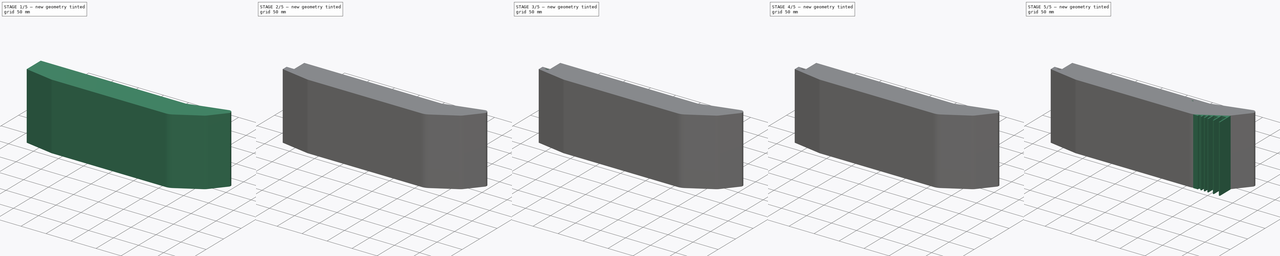
[diagram: build sequence overview — one tinted view per stage of 5, left to right]
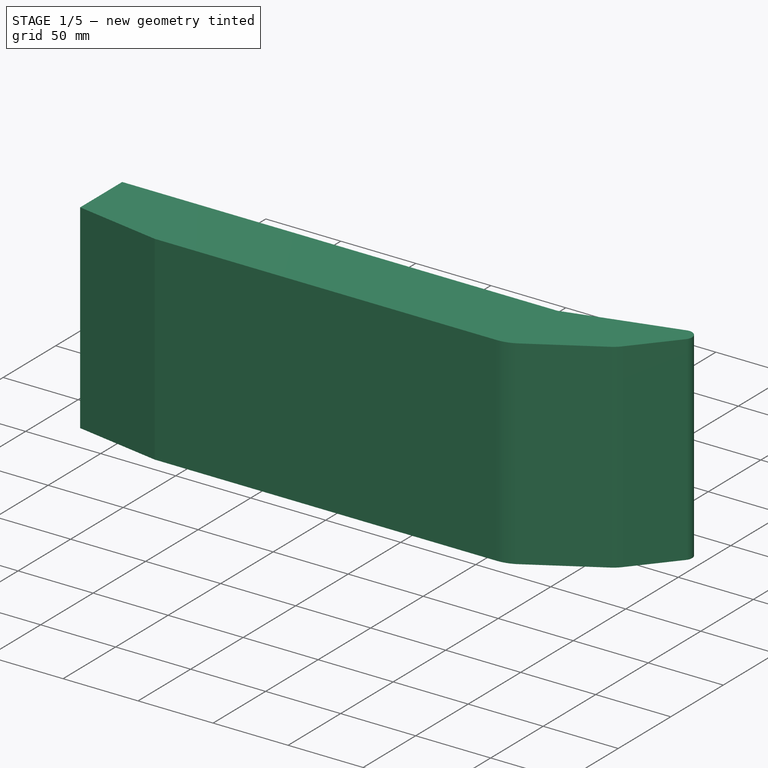
[diagram: stage 1 of 5 — iso view after this stage's code; geometry added in this stage tinted green]
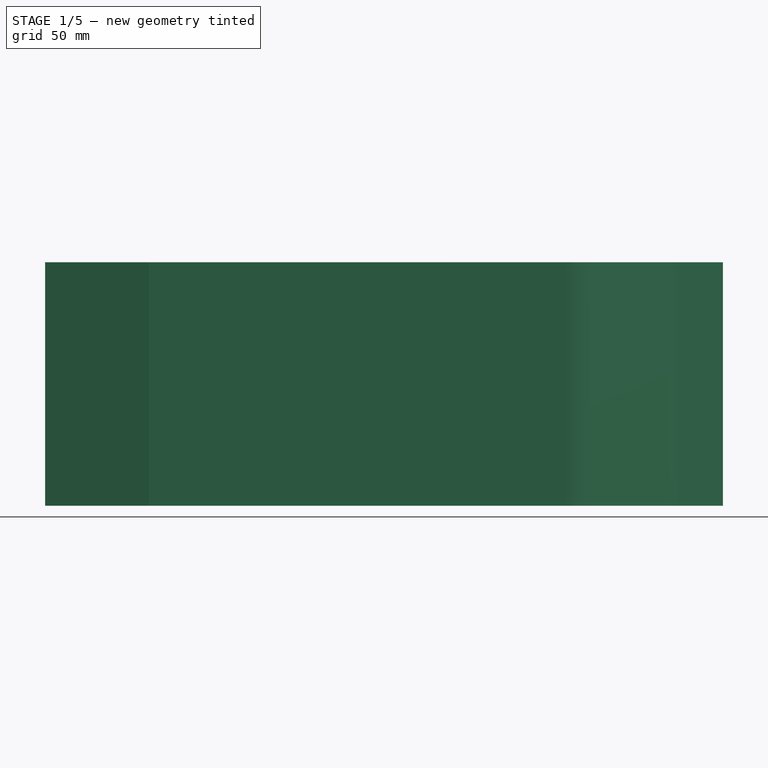
[diagram: stage 1 of 5 — front view after this stage's code; geometry added in this stage tinted green]
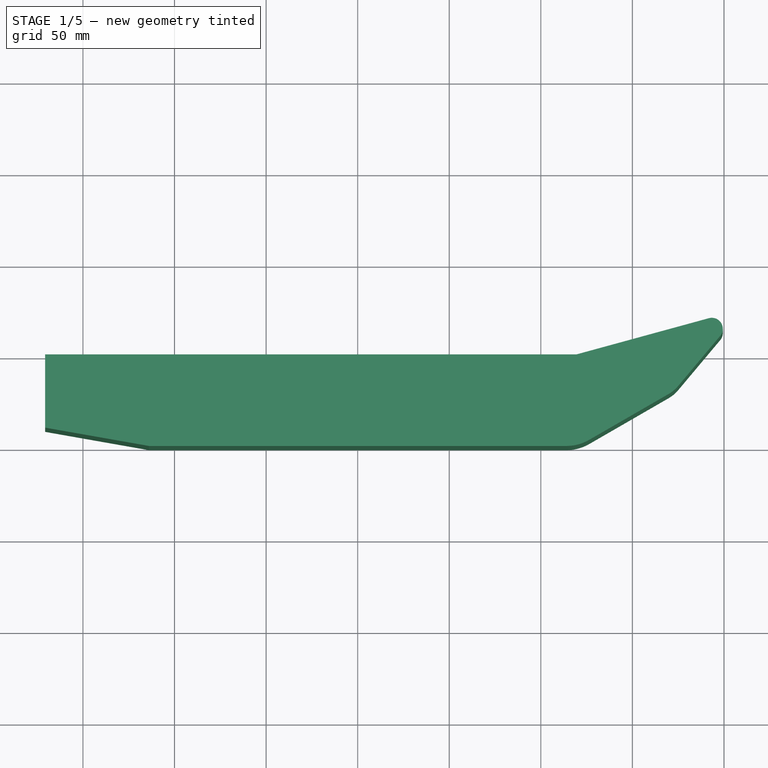
[diagram: stage 1 of 5 — top view after this stage's code; geometry added in this stage tinted green]
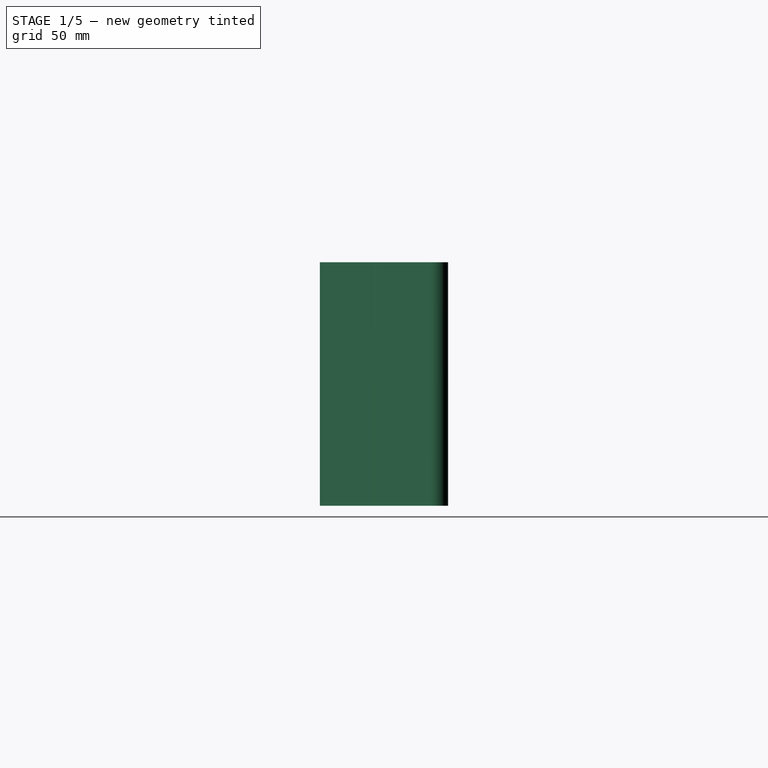
[diagram: stage 1 of 5 — right view after this stage's code; geometry added in this stage tinted green]
FCSTD DOCUMENT  (FreeCAD 0.16R6706 (Git))
Label: Hull
License: All rights reserved
LicenseURL: http://en.wikipedia.org/wiki/All_rights_reserved
objects: Sketcher::SketchObject×13, PartDesign::Pocket×7, PartDesign::Pad×5, PartDesign::Chamfer×5
note: 42 computed .brp shape members not serialized (recipe doc carries the construction recipe); baked Part::Feature solids carry a one-line shape summary decoded from their .brp

FEATURE [Sketcher::SketchObject] Sketch
  sketch-geometry (38):
    g0: LineSegment StartX=-113.915 StartY=0 StartZ=0 EndX=113.915 EndY=0 EndZ=0
    g1: LineSegment StartX=126.415 StartY=3.34936 StartZ=0 EndX=169.716 EndY=28.3494 EndZ=0
    g2: LineSegment StartX=175.037 StartY=32.8141 StartZ=0 EndX=197.969 EndY=60.1433 EndZ=0
    g3: LineSegment StartX=-113.915 StartY=0 StartZ=0 EndX=-170.628 EndY=10 EndZ=0
    g4: LineSegment StartX=-170.628 StartY=10 StartZ=0 EndX=-170.628 EndY=50 EndZ=0
    g5: LineSegment StartX=-170.628 StartY=50 StartZ=0 EndX=-150.628 EndY=50 EndZ=0
    g6: LineSegment StartX=-150.628 StartY=47 StartZ=0 EndX=-150.628 EndY=50 EndZ=0
    g7: LineSegment StartX=-143.628 StartY=47 StartZ=0 EndX=-143.628 EndY=32 EndZ=0
    g8: LineSegment StartX=-143.628 StartY=32 StartZ=0 EndX=-149.451 EndY=10.266 EndZ=0
    g9: LineSegment StartX=-149.451 StartY=10.266 StartZ=0 EndX=-113.915 EndY=4 EndZ=0
    g10: LineSegment StartX=-113.915 StartY=4 StartZ=0 EndX=111.415 EndY=4 EndZ=0
    g11: LineSegment StartX=113.915 StartY=47 StartZ=0 EndX=119.447 EndY=47 EndZ=0
    g12: LineSegment StartX=119.447 StartY=47 StartZ=0 EndX=119.447 EndY=50 EndZ=0
    g13: LineSegment StartX=119.447 StartY=50 StartZ=0 EndX=191.79 EndY=69.7874 EndZ=0
    g14: ArcOfCircle CenterX=193.372 CenterY=64 CenterZ=0 NormalX=0 NormalY=0 NormalZ=1 Radius=6 StartAngle=5.58506 EndAngle=8.12097
    g15: LineSegment StartX=113.915 StartY=47 StartZ=0 EndX=113.915 EndY=6.5 EndZ=0
    g16: LineSegment [constr] StartX=199.372 StartY=113.188 StartZ=0 EndX=199.372 EndY=-5.65621 EndZ=0
    g17: LineSegment [constr] StartX=214.642 StartY=70 StartZ=0 EndX=104.58 EndY=70 EndZ=0
    g18: LineSegment [constr] StartX=119.447 StartY=50 StartZ=0 EndX=-150.628 EndY=50 EndZ=0
    g19: LineSegment StartX=-143.628 StartY=47 StartZ=0 EndX=-150.628 EndY=47 EndZ=0
    g20: LineSegment [constr] StartX=-113.915 StartY=4 StartZ=0 EndX=-113.915 EndY=0 EndZ=0
    g21: ArcOfCircle CenterX=113.915 CenterY=25 CenterZ=0 NormalX=0 NormalY=0 NormalZ=1 Radius=25 StartAngle=4.71239 EndAngle=5.23599
    g22: ArcOfCircle CenterX=111.415 CenterY=6.5 CenterZ=0 NormalX=0 NormalY=0 NormalZ=1 Radius=2.5 StartAngle=4.71239 EndAngle=6.28319
    g23: ArcOfCircle CenterX=159.716 CenterY=45.6699 CenterZ=0 NormalX=0 NormalY=0 NormalZ=1 Radius=20 StartAngle=5.23599 EndAngle=5.58505
    g24: LineSegment [constr] StartX=113.915 StartY=0 StartZ=0 EndX=113.915 EndY=6.5 EndZ=0
    g25: LineSegment [constr] StartX=-123.935 StartY=155.865 StartZ=0 EndX=-136.118 EndY=155.865 EndZ=0
    g26: LineSegment [constr] StartX=-136.118 StartY=155.865 StartZ=0 EndX=-136.118 EndY=101.729 EndZ=0
    g27: LineSegment [constr] StartX=-136.118 StartY=101.729 StartZ=0 EndX=-123.935 EndY=101.729 EndZ=0
    g28: LineSegment [constr] StartX=-123.935 StartY=101.729 StartZ=0 EndX=-123.935 EndY=155.865 EndZ=0
    g29: LineSegment [constr] StartX=-90.6954 StartY=138.531 StartZ=0 EndX=-117.878 EndY=138.531 EndZ=0
    g30: LineSegment [constr] StartX=-117.878 StartY=138.531 StartZ=0 EndX=-117.878 EndY=119.064 EndZ=0
    g31: LineSegment [constr] StartX=-117.878 StartY=119.064 StartZ=0 EndX=-90.6954 EndY=119.064 EndZ=0
    g32: LineSegment [constr] StartX=-90.6954 StartY=119.064 StartZ=0 EndX=-90.6954 EndY=138.531 EndZ=0
    g33: LineSegment [constr] StartX=-117.878 StartY=131.242 StartZ=0 EndX=-123.935 EndY=131.242 EndZ=0
    g34: LineSegment [constr] StartX=-123.935 StartY=131.242 StartZ=0 EndX=-123.935 EndY=126.353 EndZ=0
    g35: LineSegment [constr] StartX=-123.935 StartY=126.353 StartZ=0 EndX=-117.878 EndY=126.353 EndZ=0
    g36: LineSegment [constr] StartX=-117.878 StartY=126.353 StartZ=0 EndX=-117.878 EndY=131.242 EndZ=0
    g37: LineSegment [constr] StartX=-60.846 StartY=128.797 StartZ=0 EndX=-166.4 EndY=128.797 EndZ=0
  constraints (98):
    c: PointOnObject(g0,g-1)
    c: Horizontal(g0)
    c: Coincident(g0,g3)
    c: Coincident(g3,g4)
    c: Coincident(g4,g5)
    c: Horizontal(g5)
    c: Vertical(g6)
    c: Vertical(g7)
    c: Coincident(g7,g8)
    c: Coincident(g9,g10)
    c: Horizontal(g10)
    c: Horizontal(g11)
    c: Coincident(g11,g12)
    c: Vertical(g12)
    c: Coincident(g12,g13)
    c: Coincident(g14,g2)
    c: Coincident(g14,g13)
    c: Parallel(g9,g3)
    c: Equal(g6,g12)
    c: Tangent(g14,g13)
    c: Tangent(g14,g2)
    c: Vertical(g15)
    c: Coincident(g15,g11)
    c: Angle(g1) = 0.523599
    c: Angle(g2) = 0.872665
    c: Vertical(g16)
    c: Horizontal(g17)
    c: Tangent(g14,g17)
    c: Tangent(g16,g14)
    c: DistanceY(g0,g5) = 50
    c: Horizontal(g18)
    c: Coincident(g18,g12)
    c: Coincident(g5,g18)
    c: Coincident(g6,g5)
    c: Coincident(g19,g6)
    c: Horizontal(g19)
    c: Coincident(g7,g19)
    c: Distance(g6) = 3
    c: Distance(g5) = 20
    c: Angle(g3) = 2.96706
    c: Vertical(g4)
    c: Angle(g8) = 4.45059
    c: DistanceX(g3,g16) = 370
    c: Radius(g14) = 6
    c: Coincident(g20,g9)
    c: Coincident(g20,g0)
    c: Vertical(g20)
    c: Distance(g19) = 7
    c: Distance(g4) = 40
    c: Distance(g7) = 15
    c: Tangent(g1,g21) = -1.5708
    c: Tangent(g0,g21) = -1.5708
    c: Tangent(g15,g22) = 1.5708
    c: Tangent(g10,g22) = -1.5708
    c: Tangent(g2,g23) = -1.5708
    c: Tangent(g1,g23) = -1.5708
    c: Radius(g23) = 20
    c: Radius(g21) = 25
    c: Distance(g1) = 50
    c: Distance(g13) = 75
    c: Coincident(g8,g9)
    c: Radius(g22) = 2.5
    c: Coincident(g24,g0)
    c: Coincident(g24,g15)
    c: Vertical(g24)
    c: Distance(g24) = 6.5
    c: DistanceY(g0,g17) = 70
    c: Symmetric(g0,g0,g-2)
    c: Coincident(g25,g26)
    c: Coincident(g26,g27)
    c: Coincident(g27,g28)
    c: Coincident(g28,g25)
    c: Horizontal(g25)
    c: Horizontal(g27)
    c: Vertical(g26)
    c: Vertical(g28)
    c: Coincident(g29,g30)
    c: Coincident(g30,g31)
    c: Coincident(g31,g32)
    c: Coincident(g32,g29)
    c: Horizontal(g29)
    c: Horizontal(g31)
    c: Vertical(g30)
    c: Vertical(g32)
    c: Coincident(g33,g34)
    c: Coincident(g34,g35)
    c: Coincident(g35,g36)
    c: Coincident(g36,g33)
    c: Horizontal(g33)
    c: Horizontal(g35)
    c: Vertical(g34)
    c: Vertical(g36)
    c: PointOnObject(g33,g30)
    c: PointOnObject(g34,g28)
    c: Horizontal(g37)
    c: Symmetric(g31,g29,g37)
    c: Symmetric(g26,g25,g37)
    c: Symmetric(g34,g33,g37)
FEATURE [PartDesign::Pad] Pad
  Length = 130
  Length2 = 100
  Sketch = -> Sketch
  Type = 0
FEATURE [Sketcher::SketchObject] Sketch001
  ExternalGeometry = -> [Pad]
  Placement = pos=(0,0,130) rot=(0,0,1;0rad)
  Support = -> Pad [Face22]
  sketch-geometry (22):
    g0: LineSegment StartX=195.671 StartY=62.0716 StartZ=0 EndX=172.794 EndY=34.8085 EndZ=0
    g1: LineSegment StartX=170.281 StartY=33.079 StartZ=0 EndX=119.915 EndY=4 EndZ=0
    g2: LineSegment StartX=116.915 StartY=4.78598 StartZ=0 EndX=116.915 EndY=39.786 EndZ=0
    g3: LineSegment StartX=125.74 StartY=48.6111 StartZ=0 EndX=116.915 EndY=39.786 EndZ=0
    g4: LineSegment [constr] StartX=162.166 StartY=17.4749 StartZ=0 EndX=159.868 EndY=19.4033 EndZ=0
    g5: ArcOfCircle CenterX=193.373 CenterY=64 CenterZ=0 NormalX=0 NormalY=0 NormalZ=1 Radius=2.99999 StartAngle=5.58505 EndAngle=8.12097
    g6: LineSegment [constr] StartX=147.727 StartY=57.7353 StartZ=0 EndX=148.518 EndY=54.8416 EndZ=0
    g7: LineSegment [constr] StartX=111.415 StartY=4 StartZ=0 EndX=119.915 EndY=4 EndZ=0
    g8: LineSegment [constr] StartX=148.518 StartY=54.8416 StartZ=0 EndX=170.281 EndY=33.079 EndZ=0
    g9: LineSegment [constr] StartX=148.518 StartY=54.8416 StartZ=0 EndX=119.915 EndY=4 EndZ=0
    g10: LineSegment [constr] StartX=125.74 StartY=48.6111 StartZ=0 EndX=192.581 EndY=66.8937 EndZ=0
    g11: LineSegment StartX=116.915 StartY=4.78598 StartZ=0 EndX=144.45 EndY=53.7288 EndZ=0
    g12: LineSegment StartX=151.85 StartY=55.7528 StartZ=0 EndX=172.794 EndY=34.8085 EndZ=0
    g13: LineSegment StartX=144.45 StartY=53.7288 StartZ=0 EndX=125.74 EndY=48.6111 EndZ=0
    g14: LineSegment StartX=192.581 StartY=66.8937 StartZ=0 EndX=151.85 EndY=55.7528 EndZ=0
    g15: LineSegment StartX=148.518 StartY=54.8416 StartZ=0 EndX=170.281 EndY=33.079 EndZ=0
    g16: LineSegment StartX=148.518 StartY=54.8416 StartZ=0 EndX=119.915 EndY=4 EndZ=0
    g17: LineSegment [constr] StartX=137.17 StartY=34.6709 StartZ=0 EndX=134.556 EndY=36.1419 EndZ=0
    g18: LineSegment [constr] StartX=135.982 StartY=67.3784 StartZ=0 EndX=138.103 EndY=69.4997 EndZ=0
    g19: LineSegment [constr] StartX=159.716 StartY=45.6699 StartZ=0 EndX=172.376 EndY=30.5817 EndZ=0
    g20: LineSegment [constr] StartX=175.037 StartY=32.8141 StartZ=0 EndX=169.716 EndY=28.3494 EndZ=0
    g21: LineSegment [constr] StartX=197.969 StartY=60.1433 StartZ=0 EndX=195.671 EndY=62.0716 EndZ=0
  constraints (61):
    c: Vertical(g2)
    c: Coincident(g3,g2)
    c: Parallel(g0,g-5)
    c: Parallel(g1,g-6)
    c: Angle(g3) = 3.92699
    c: PointOnObject(g4,g-5)
    c: PointOnObject(g4,g0)
    c: Perpendicular(g-5,g4)
    c: Distance(g4) = 3
    c: DistanceX(g-9,g2) = 3
    c: Coincident(g5,g0)
    c: PointOnObject(g6,g-3)
    c: Perpendicular(g-3,g6)
    c: Equal(g6,g4)
    c: Coincident(g7,g1)
    c: Horizontal(g7)
    c: Coincident(g7,g-10)
    c: Distance(g7) = 8.5
    c: Coincident(g8,g6)
    c: Coincident(g8,g1)
    c: Angle(g8) = -0.785398
    c: Coincident(g9,g6)
    c: Coincident(g9,g1)
    c: PointOnObject(g6,g10)
    c: Coincident(g11,g2)
    c: PointOnObject(g11,g10)
    c: PointOnObject(g12,g10)
    c: Parallel(g12,g8)
    c: Parallel(g9,g11)
    c: Coincident(g10,g5)
    c: Coincident(g10,g3)
    c: Parallel(g10,g-3)
    c: Coincident(g0,g12)
    c: Coincident(g13,g3)
    c: Coincident(g11,g13)
    c: Tangent(g5,g10)
    c: Coincident(g14,g5)
    c: Coincident(g14,g12)
    c: Coincident(g15,g6)
    c: Coincident(g15,g1)
    c: Coincident(g16,g6)
    c: Coincident(g16,g1)
    c: Tangent(g5,g0)
    c: PointOnObject(g17,g9)
    c: PointOnObject(g17,g11)
    c: PointOnObject(g18,g8)
    c: PointOnObject(g18,g12)
    c: Perpendicular(g18,g8)
    c: Perpendicular(g17,g9)
    c: Distance(g17) = 3
    c: Distance(g18) = 3
    c: Coincident(g19,g-7)
    c: Coincident(g20,g-7)
    c: Coincident(g20,g-7)
    c: PointOnObject(g19,g20)
    c: Perpendicular(g20,g19)
    c: PointOnObject(g1,g19)
    c: Distance(g2) = 35
    c: Coincident(g21,g-5)
    c: Coincident(g21,g0)
    c: Perpendicular(g-5,g21)
FEATURE [PartDesign::Pocket] Pocket
  Length = 0
  Sketch = -> Sketch001
  Type = 3
  UpToFace = -> Pad [Face21]
FEATURE [Sketcher::SketchObject] Sketch002
  ExternalGeometry = -> [Pocket]
  Placement = pos=(0,0,130) rot=(0,0,1;0rad)
  Support = -> Pocket [Face5]
  sketch-geometry (10):
    g0: LineSegment StartX=-170.628 StartY=50 StartZ=0 EndX=-170.628 EndY=10 EndZ=0
    g1: LineSegment StartX=-170.628 StartY=10 StartZ=0 EndX=-113.915 EndY=0 EndZ=0
    g2: LineSegment StartX=-113.915 StartY=0 StartZ=0 EndX=113.915 EndY=0 EndZ=0
    g3: LineSegment StartX=126.415 StartY=3.34936 StartZ=0 EndX=169.716 EndY=28.3494 EndZ=0
    g4: LineSegment StartX=175.037 StartY=32.8141 StartZ=0 EndX=197.969 EndY=60.1433 EndZ=0
    g5: LineSegment StartX=191.79 StartY=69.7874 StartZ=0 EndX=119.447 EndY=50 EndZ=0
    g6: LineSegment StartX=119.447 StartY=50 StartZ=0 EndX=-170.628 EndY=50 EndZ=0
    g7: ArcOfCircle CenterX=113.915 CenterY=25 CenterZ=0 NormalX=0 NormalY=0 NormalZ=1 Radius=25 StartAngle=4.71239 EndAngle=5.23599
    g8: ArcOfCircle CenterX=159.716 CenterY=45.6699 CenterZ=0 NormalX=0 NormalY=0 NormalZ=1 Radius=20 StartAngle=5.23599 EndAngle=5.58505
    g9: ArcOfCircle CenterX=193.372 CenterY=64 CenterZ=0 NormalX=0 NormalY=0 NormalZ=1 Radius=6 StartAngle=5.58506 EndAngle=8.12097
  constraints (23):
    c: Coincident(g0,g1)
    c: Coincident(g1,g-3)
    c: Coincident(g1,g2)
    c: Coincident(g0,g-3)
    c: Coincident(g-5,g0)
    c: Coincident(g5,g-4)
    c: Coincident(g6,g5)
    c: Coincident(g6,g0)
    c: Coincident(g4,g-8)
    c: Coincident(g5,g-8)
    c: Coincident(g4,g-6)
    c: Coincident(g3,g-6)
    c: Coincident(g3,g-7)
    c: Coincident(g2,g-7)
    c: Coincident(g7,g2)
    c: Coincident(g7,g3)
    c: Coincident(g8,g3)
    c: Coincident(g8,g4)
    c: Coincident(g9,g4)
    c: Coincident(g9,g5)
    c: DistanceY(g-8,g9) = 0
    c: DistanceX(g-6,g8) = 0
    c: DistanceX(g7,g-7) = 0
FEATURE [PartDesign::Pad] Pad001
  Length = 3
  Length2 = 100
  Sketch = -> Sketch002
  Type = 0
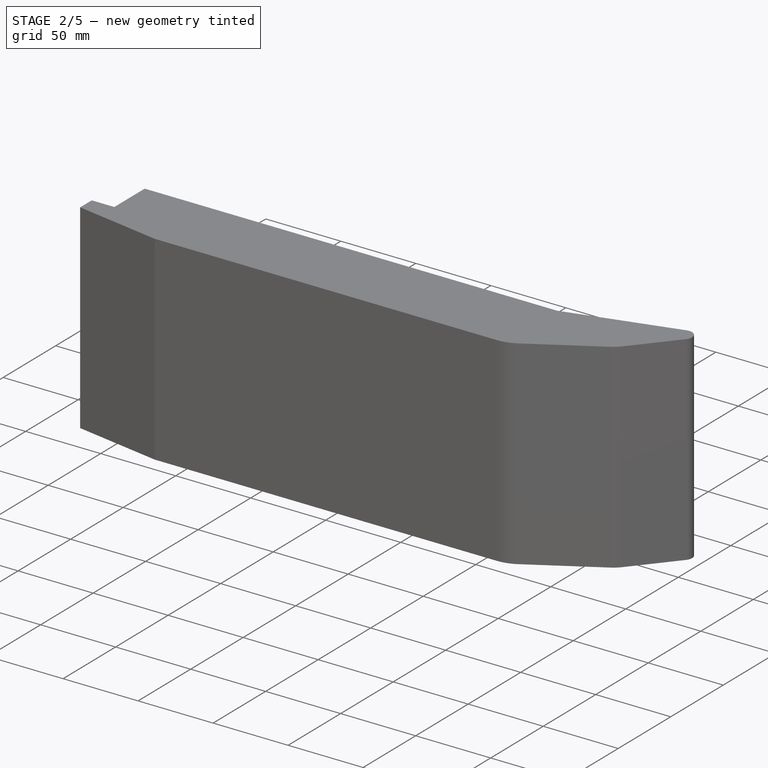
[diagram: stage 2 of 5 — iso view after this stage's code; geometry added in this stage tinted green]
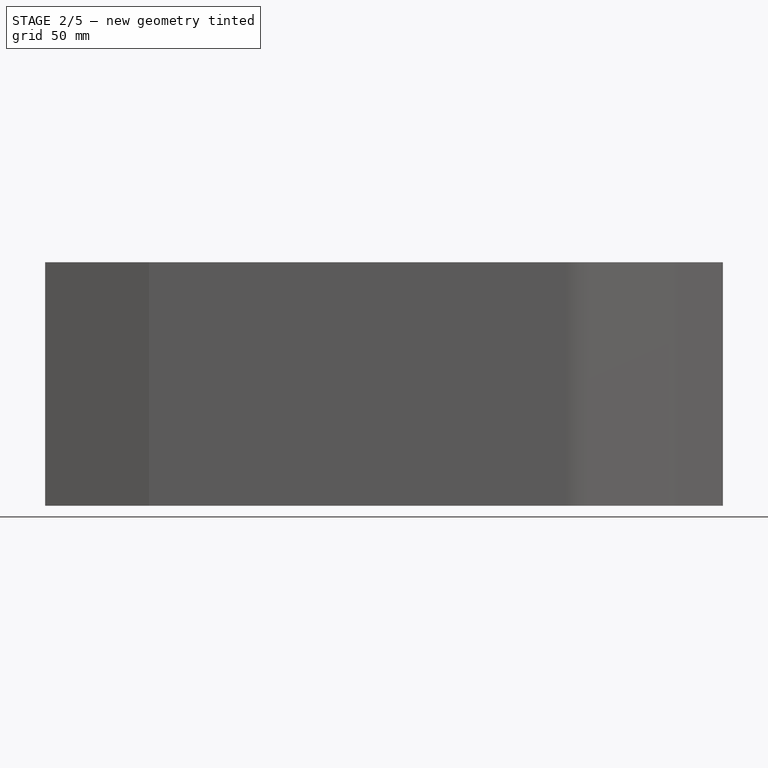
[diagram: stage 2 of 5 — front view after this stage's code; geometry added in this stage tinted green]
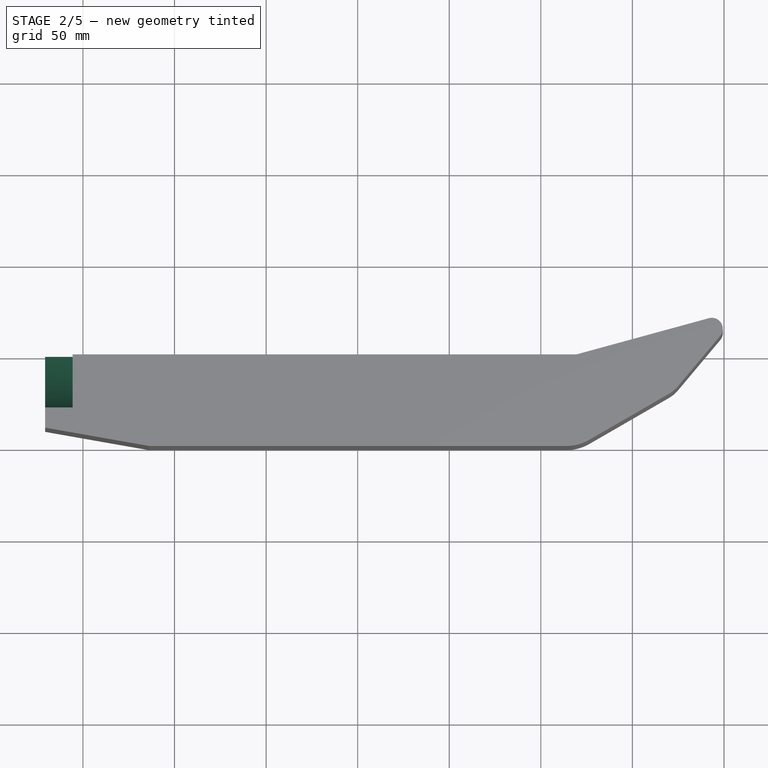
[diagram: stage 2 of 5 — top view after this stage's code; geometry added in this stage tinted green]
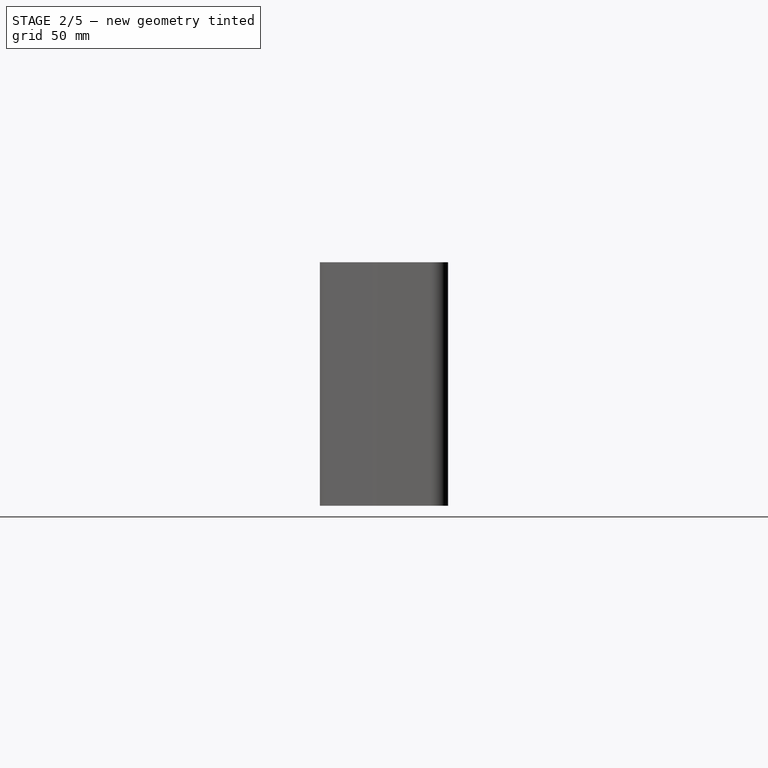
[diagram: stage 2 of 5 — right view after this stage's code; geometry added in this stage tinted green]
FEATURE [Sketcher::SketchObject] Sketch003
  Placement = pos=(-170.628,0,0) rot=(0.57735,-0.57735,-0.57735;2.0944rad)
  Support = -> Pad001 [Face12]
  sketch-geometry (1):
    g0: Circle CenterX=-150 CenterY=136.4 CenterZ=0 NormalX=0 NormalY=0 NormalZ=1 Radius=129
  constraints (3):
    c: Radius(g0) = 129
    c: DistanceY(g-1,g0) = 136.4
    c: DistanceX(g0,g-1) = 150
FEATURE [PartDesign::Pocket] Pocket001
  Length = 15
  Sketch = -> Sketch003
  Type = 0
FEATURE [Sketcher::SketchObject] Sketch004
  ExternalGeometry = -> [Pocket001]
  Placement = pos=(0,4,0) rot=(0,0.707107,0.707107;3.14159rad)
  Support = -> Pocket001 [Face32]
  sketch-geometry (23):
    g0: LineSegment [constr] StartX=13.9147 StartY=0 StartZ=0 EndX=13.9147 EndY=130 EndZ=0
    g1: LineSegment [constr] StartX=76.5147 StartY=42.6 StartZ=0 EndX=-48.6853 EndY=42.6 EndZ=0
    g2: LineSegment [constr] StartX=-48.6853 StartY=42.6 StartZ=0 EndX=-48.6853 EndY=0 EndZ=0
    g3: LineSegment [constr] StartX=-48.6853 StartY=0 StartZ=0 EndX=76.5147 EndY=0 EndZ=0
    g4: LineSegment [constr] StartX=76.5147 StartY=0 StartZ=0 EndX=76.5147 EndY=42.6 EndZ=0
    g5: LineSegment StartX=72.1147 StartY=26.6 StartZ=0 EndX=79.5147 EndY=26.6 EndZ=0
    g6: LineSegment StartX=79.5147 StartY=26.6 StartZ=0 EndX=79.5147 EndY=42.6 EndZ=0
    g7: LineSegment StartX=76.5147 StartY=45.6 StartZ=0 EndX=60.5147 EndY=45.6 EndZ=0
    g8: LineSegment StartX=60.5147 StartY=45.6 StartZ=0 EndX=60.5147 EndY=38.2 EndZ=0
    g9: LineSegment StartX=60.5147 StartY=38.2 StartZ=0 EndX=72.1147 EndY=38.2 EndZ=0
    g10: LineSegment StartX=72.1147 StartY=38.2 StartZ=0 EndX=72.1147 EndY=26.6 EndZ=0
    g11: ArcOfCircle CenterX=76.5147 CenterY=42.6 CenterZ=0 NormalX=0 NormalY=0 NormalZ=1 Radius=3 StartAngle=0 EndAngle=1.5708
    g12: LineSegment [constr] StartX=76.5147 StartY=42.6 StartZ=0 EndX=79.5147 EndY=42.6 EndZ=0
    g13: LineSegment [constr] StartX=76.5147 StartY=42.6 StartZ=0 EndX=76.5147 EndY=45.6 EndZ=0
    g14: LineSegment StartX=-44.2853 StartY=26.6 StartZ=0 EndX=-51.6853 EndY=26.6 EndZ=0
    g15: LineSegment StartX=-51.6853 StartY=26.6 StartZ=0 EndX=-51.6853 EndY=42.6 EndZ=0
    g16: LineSegment StartX=-48.6853 StartY=45.6 StartZ=0 EndX=-32.6853 EndY=45.6 EndZ=0
    g17: LineSegment StartX=-32.6853 StartY=45.6 StartZ=0 EndX=-32.6853 EndY=38.2 EndZ=0
    g18: LineSegment StartX=-32.6853 StartY=38.2 StartZ=0 EndX=-44.2853 EndY=38.2 EndZ=0
    g19: LineSegment StartX=-44.2853 StartY=38.2 StartZ=0 EndX=-44.2853 EndY=26.6 EndZ=0
    g20: ArcOfCircle CenterX=-48.6853 CenterY=42.6 CenterZ=0 NormalX=0 NormalY=0 NormalZ=1 Radius=3 StartAngle=1.5708 EndAngle=3.14159
    g21: LineSegment [constr] StartX=-48.6853 StartY=42.6 StartZ=0 EndX=-51.6853 EndY=42.6 EndZ=0
    g22: LineSegment [constr] StartX=-48.6853 StartY=42.6 StartZ=0 EndX=-48.6853 EndY=45.6 EndZ=0
  constraints (67):
    c: Vertical(g0)
    c: Coincident(g1,g2)
    c: Coincident(g2,g3)
    c: Coincident(g3,g4)
    c: Coincident(g4,g1)
    c: Horizontal(g1)
    c: Horizontal(g3)
    c: Vertical(g2)
    c: Vertical(g4)
    c: Distance(g4) = 42.6
    c: Distance(g1) = 125.2
    c: Symmetric(g3,g2,g0)
    c: Horizontal(g5)
    c: Coincident(g5,g6)
    c: Vertical(g6)
    c: Horizontal(g7)
    c: Coincident(g7,g8)
    c: Vertical(g8)
    c: Coincident(g8,g9)
    c: Horizontal(g9)
    c: Coincident(g9,g10)
    c: Coincident(g10,g5)
    c: Vertical(g10)
    c: Equal(g5,g8)
    c: Coincident(g11,g1)
    c: Coincident(g11,g6)
    c: Coincident(g11,g7)
    c: Radius(g11) = 3
    c: Coincident(g12,g1)
    c: Coincident(g12,g6)
    c: Coincident(g13,g1)
    c: Coincident(g13,g7)
    c: Horizontal(g12)
    c: Vertical(g13)
    c: Equal(g6,g7)
    c: Distance(g5) = 7.4
    c: Distance(g6) = 16
    c: Horizontal(g14)
    c: Coincident(g14,g15)
    c: Vertical(g15)
    c: Horizontal(g16)
    c: Coincident(g16,g17)
    c: Vertical(g17)
    c: Coincident(g17,g18)
    c: Horizontal(g18)
    c: Coincident(g18,g19)
    c: Coincident(g19,g14)
    c: Vertical(g19)
    c: Equal(g14,g17)
    c: Coincident(g20,g15)
    c: Coincident(g20,g16)
    c: Radius(g20) = 3
    c: Coincident(g21,g15)
    c: Coincident(g22,g16)
    c: Horizontal(g21)
    c: Vertical(g22)
    c: Equal(g15,g16)
    c: Distance(g14) = 7.4
    c: Distance(g15) = 16
    c: Coincident(g21,g1)
    c: Coincident(g22,g1)
    c: Equal(g21,g22)
    c: Distance(g22) = 3
    c: DistanceX(g0,g-6) = 100
    c: Equal(g-6,g0)
    c: PointOnObject(g0,g3)
    c: PointOnObject(g-1,g3)
FEATURE [PartDesign::Pad] Pad002
  Length = 7
  Length2 = 100
  Sketch = -> Sketch004
  Type = 0
FEATURE [Sketcher::SketchObject] Sketch005
  ExternalGeometry = -> [Pad002]
  Placement = pos=(0,11,0) rot=(0,0.707107,0.707107;3.14159rad)
  Support = -> Pad002 [Face64]
  sketch-geometry (14):
    g0: LineSegment StartX=79.5147 StartY=42.6 StartZ=0 EndX=79.5147 EndY=26.6 EndZ=0
    g1: LineSegment StartX=79.5147 StartY=26.6 StartZ=0 EndX=76.5147 EndY=26.6 EndZ=0
    g2: LineSegment StartX=76.5147 StartY=26.6 StartZ=0 EndX=76.5147 EndY=42.6 EndZ=0
    g3: LineSegment StartX=76.5147 StartY=42.6 StartZ=0 EndX=60.5147 EndY=42.6 EndZ=0
    g4: LineSegment StartX=60.5147 StartY=42.6 StartZ=0 EndX=60.5147 EndY=45.6 EndZ=0
    g5: ArcOfCircle CenterX=76.5147 CenterY=42.6 CenterZ=0 NormalX=0 NormalY=0 NormalZ=1 Radius=3 StartAngle=0 EndAngle=1.5708
    g6: LineSegment StartX=-51.6853 StartY=42.6 StartZ=0 EndX=-51.6853 EndY=26.6 EndZ=0
    g7: LineSegment StartX=-51.6853 StartY=26.6 StartZ=0 EndX=-48.6853 EndY=26.6 EndZ=0
    g8: LineSegment StartX=-48.6853 StartY=42.6 StartZ=0 EndX=-32.6853 EndY=42.6 EndZ=0
    g9: LineSegment StartX=-32.6853 StartY=42.6 StartZ=0 EndX=-32.6853 EndY=45.6 EndZ=0
    g10: LineSegment StartX=-32.6853 StartY=45.6 StartZ=0 EndX=-48.6853 EndY=45.6 EndZ=0
    g11: ArcOfCircle CenterX=-48.6853 CenterY=42.6 CenterZ=0 NormalX=0 NormalY=0 NormalZ=1 Radius=3 StartAngle=1.5708 EndAngle=3.14159
    g12: LineSegment StartX=76.5147 StartY=45.6 StartZ=0 EndX=60.5147 EndY=45.6 EndZ=0
    g13: LineSegment StartX=-48.6853 StartY=42.6 StartZ=0 EndX=-48.6853 EndY=26.6 EndZ=0
  constraints (34):
    c: Coincident(g-10,g5)
    c: Coincident(g12,g5)
    c: Coincident(g5,g0)
    c: Coincident(g-10,g0)
    c: Coincident(g1,g2)
    c: Coincident(g0,g1)
    c: Coincident(g4,g12)
    c: Coincident(g4,g-9)
    c: Coincident(g3,g4)
    c: Horizontal(g1)
    c: Vertical(g4)
    c: Coincident(g0,g-8)
    c: Coincident(g9,g10)
    c: Coincident(g-7,g9)
    c: Coincident(g8,g9)
    c: Coincident(g7,g6)
    c: Coincident(g-11,g6)
    c: Horizontal(g8)
    c: Vertical(g9)
    c: Horizontal(g7)
    c: Coincident(g6,g11)
    c: Coincident(g10,g11)
    c: Coincident(g-6,g6)
    c: Coincident(g10,g-5)
    c: Coincident(g5,g2)
    c: Coincident(g3,g2)
    c: Vertical(g2)
    c: Horizontal(g3)
    c: DistanceX(g2,g-10) = 0
    c: Coincident(g13,g8)
    c: Coincident(g13,g7)
    c: Vertical(g13)
    c: Coincident(g8,g11)
    c: DistanceX(g-5,g8) = 0
FEATURE [PartDesign::Pad] Pad003
  Length = 10
  Length2 = 100
  Sketch = -> Sketch005
  Type = 3
  UpToFace = -> Pad002 [Face28]
FEATURE [Sketcher::SketchObject] Sketch006
  ExternalGeometry = -> [Pad003]
  Placement = pos=(0,50,0) rot=(0,0.707107,0.707107;3.14159rad)
  Support = -> Pad003 [Face24]
  sketch-geometry (6):
    g0: LineSegment StartX=166.278 StartY=53.5577 StartZ=0 EndX=156.978 EndY=53.5577 EndZ=0
    g1: LineSegment StartX=156.978 StartY=53.5577 StartZ=0 EndX=156.978 EndY=50.2577 EndZ=0
    g2: LineSegment StartX=156.978 StartY=50.2577 StartZ=0 EndX=166.278 EndY=50.2577 EndZ=0
    g3: LineSegment StartX=166.278 StartY=50.2577 StartZ=0 EndX=166.278 EndY=53.5577 EndZ=0
    g4: LineSegment [constr] StartX=166.278 StartY=51.9077 StartZ=0 EndX=156.978 EndY=51.9077 EndZ=0
    g5: LineSegment [constr] StartX=161.628 StartY=53.5577 StartZ=0 EndX=161.628 EndY=50.2577 EndZ=0
  constraints (20):
    c: Coincident(g0,g1)
    c: Coincident(g1,g2)
    c: Coincident(g2,g3)
    c: Coincident(g3,g0)
    c: Horizontal(g0)
    c: Horizontal(g2)
    c: Vertical(g1)
    c: Vertical(g3)
    c: Distance(g2) = 9.3
    c: Distance(g3) = 3.3
    c: PointOnObject(g4,g3)
    c: PointOnObject(g4,g1)
    c: Horizontal(g4)
    c: DistanceY(g4,g-3) = 3
    c: Symmetric(g2,g0,g4)
    c: PointOnObject(g5,g0)
    c: PointOnObject(g5,g2)
    c: Vertical(g5)
    c: Symmetric(g2,g1,g5)
    c: DistanceX(g-3,g5) = 6
FEATURE [PartDesign::Pocket] Pocket002
  Length = 11
  Sketch = -> Sketch006
  Type = 0
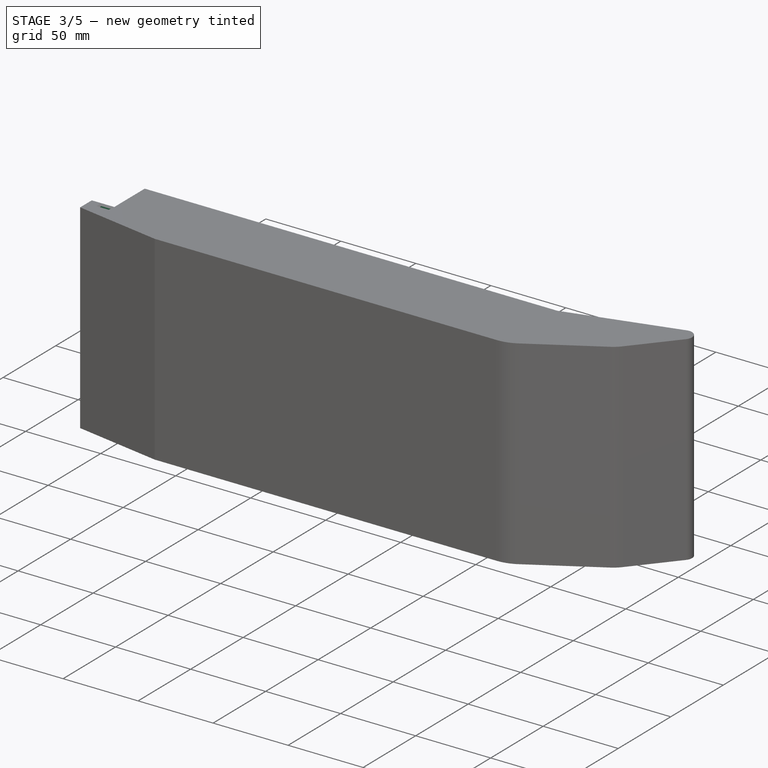
[diagram: stage 3 of 5 — iso view after this stage's code; geometry added in this stage tinted green]
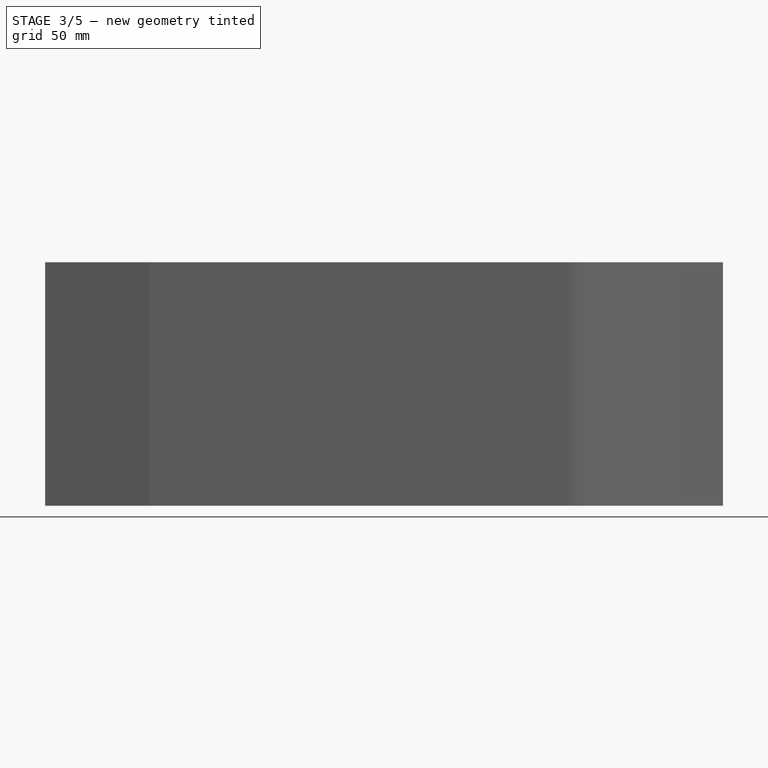
[diagram: stage 3 of 5 — front view after this stage's code; geometry added in this stage tinted green]
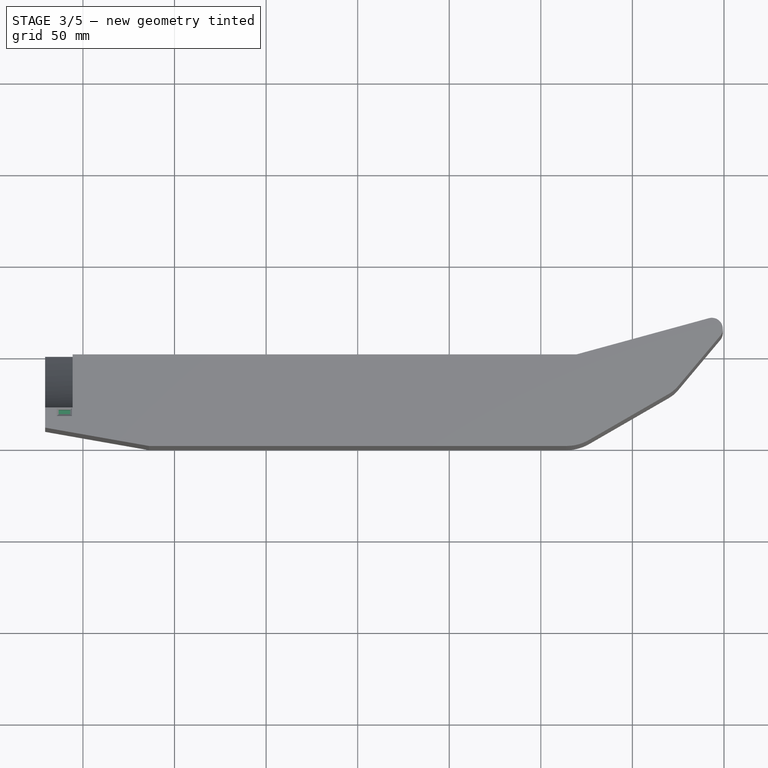
[diagram: stage 3 of 5 — top view after this stage's code; geometry added in this stage tinted green]
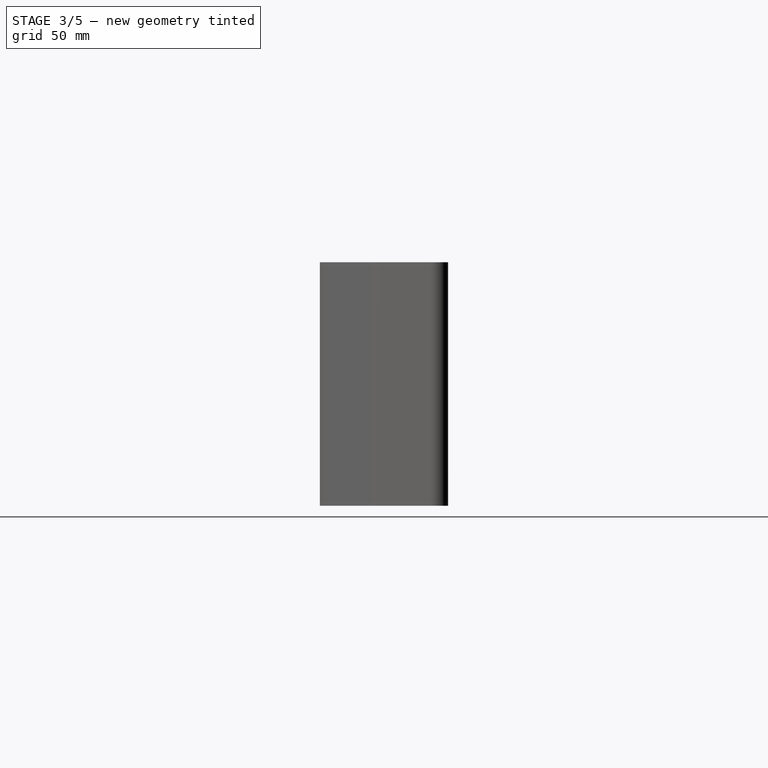
[diagram: stage 3 of 5 — right view after this stage's code; geometry added in this stage tinted green]
FEATURE [PartDesign::Chamfer] Chamfer
  Base = -> Pocket002 [Edge70,Edge73,Edge72,Edge71]
  Size = 1
FEATURE [Sketcher::SketchObject] Sketch007
  ExternalGeometry = -> [Chamfer]
  Placement = pos=(0,0,133) rot=(0,0,1;0rad)
  Support = -> Chamfer [Face46]
  sketch-geometry (6):
    g0: LineSegment StartX=-156.978 StartY=17.3948 StartZ=0 EndX=-163.278 EndY=17.3948 EndZ=0
    g1: LineSegment StartX=-163.278 StartY=17.3948 StartZ=0 EndX=-163.278 EndY=19.6948 EndZ=0
    g2: LineSegment StartX=-163.278 StartY=19.6948 StartZ=0 EndX=-156.978 EndY=19.6948 EndZ=0
    g3: LineSegment StartX=-156.978 StartY=19.6948 StartZ=0 EndX=-156.978 EndY=17.3948 EndZ=0
    g4: LineSegment [constr] StartX=-163.278 StartY=18.5448 StartZ=0 EndX=-156.978 EndY=18.5448 EndZ=0
    g5: LineSegment [constr] StartX=-160.128 StartY=19.6948 StartZ=0 EndX=-160.128 EndY=17.3948 EndZ=0
  constraints (20):
    c: Coincident(g0,g1)
    c: Coincident(g1,g2)
    c: Coincident(g2,g3)
    c: Coincident(g3,g0)
    c: Horizontal(g0)
    c: Horizontal(g2)
    c: Vertical(g1)
    c: Vertical(g3)
    c: Distance(g2) = 6.3
    c: Distance(g1) = 2.3
    c: PointOnObject(g4,g1)
    c: PointOnObject(g4,g3)
    c: Horizontal(g4)
    c: DistanceY(g4,g-3) = 2.5
    c: Symmetric(g0,g1,g4)
    c: PointOnObject(g5,g2)
    c: PointOnObject(g5,g0)
    c: Vertical(g5)
    c: Symmetric(g0,g0,g5)
    c: DistanceX(g5,g-3) = 4.5
FEATURE [PartDesign::Pocket] Pocket003
  Length = 10
  Sketch = -> Sketch007
  Type = 0
FEATURE [PartDesign::Chamfer] Chamfer001
  Base = -> Pocket003 [Edge152,Edge151,Edge150,Edge149]
  Size = 1
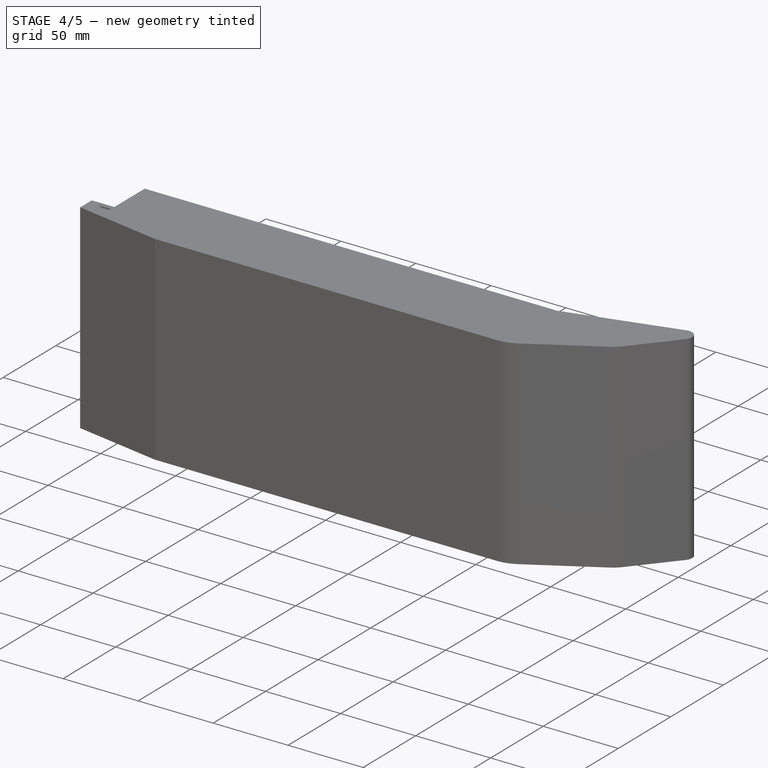
[diagram: stage 4 of 5 — iso view after this stage's code; geometry added in this stage tinted green]
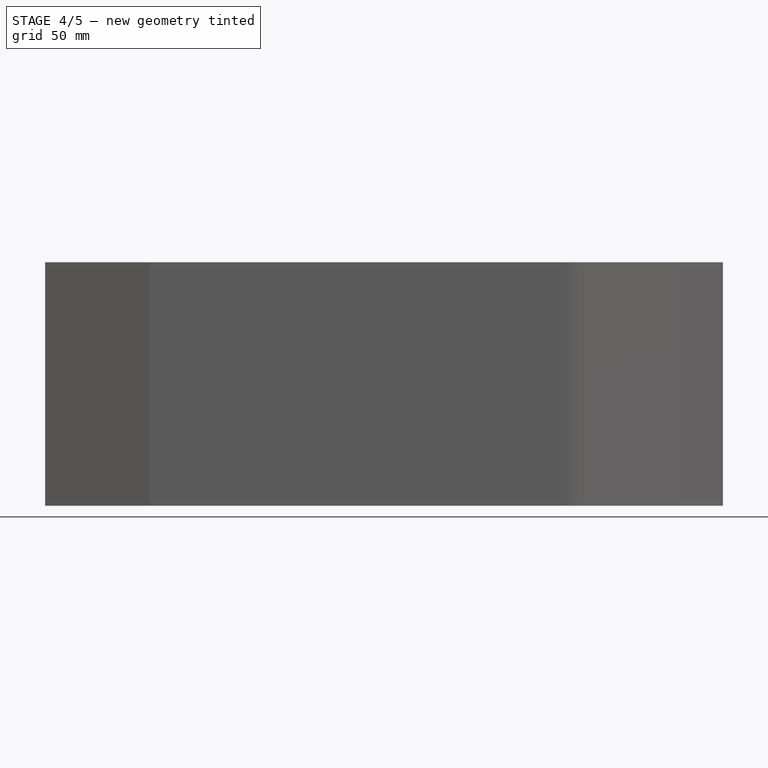
[diagram: stage 4 of 5 — front view after this stage's code; geometry added in this stage tinted green]
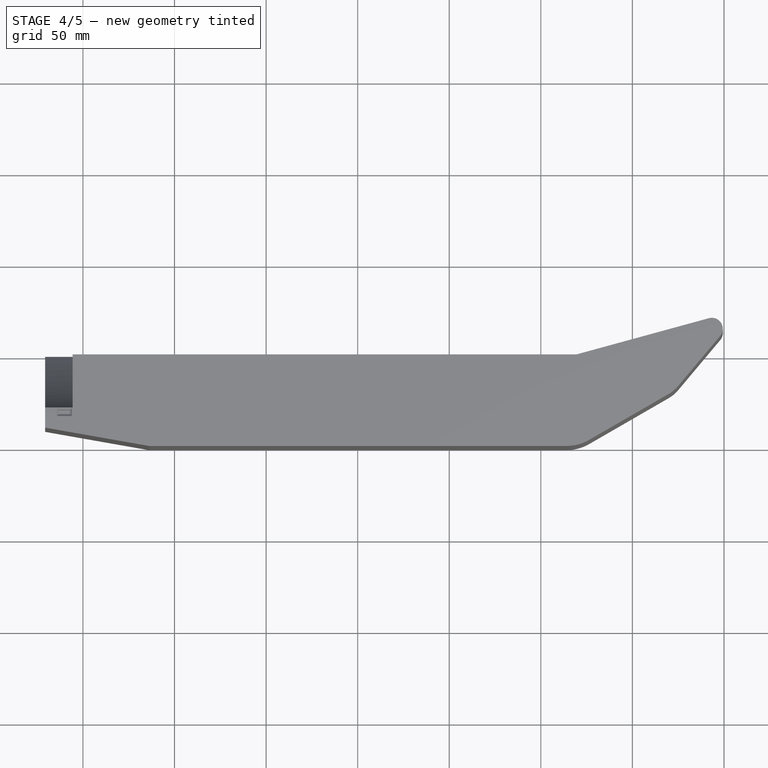
[diagram: stage 4 of 5 — top view after this stage's code; geometry added in this stage tinted green]
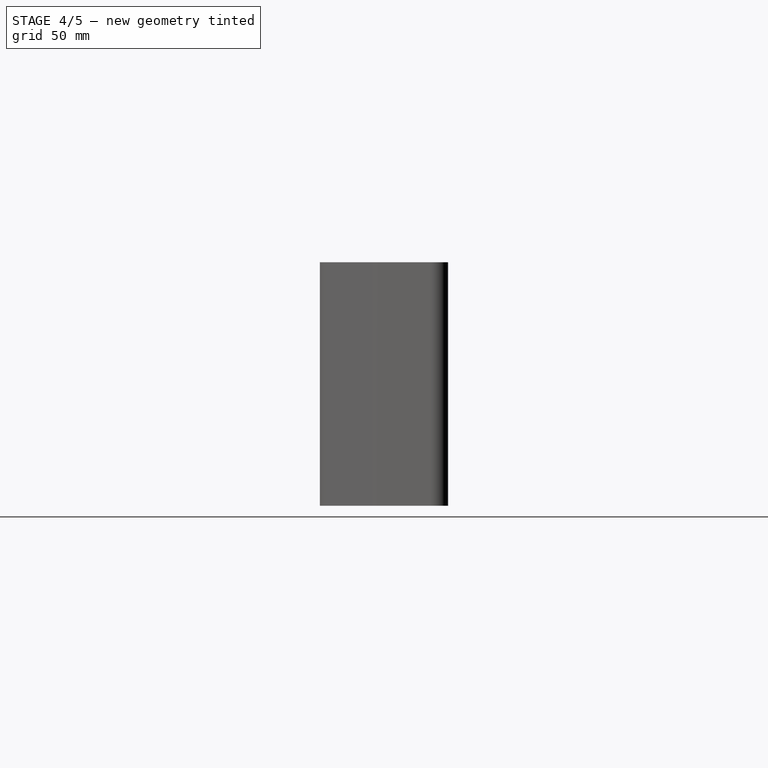
[diagram: stage 4 of 5 — right view after this stage's code; geometry added in this stage tinted green]
FEATURE [Sketcher::SketchObject] Sketch008
  ExternalGeometry = -> [Chamfer001]
  Placement = pos=(-170.628,0,0) rot=(0.57735,-0.57735,-0.57735;2.0944rad)
  Support = -> Chamfer001 [Face22]
  sketch-geometry (19):
    g0: LineSegment [constr] StartX=-39 StartY=0 StartZ=0 EndX=-39 EndY=54.9077 EndZ=0
    g1: LineSegment [constr] StartX=-21 StartY=0 StartZ=0 EndX=-21 EndY=54.9077 EndZ=0
    g2: LineSegment [constr] StartX=-50 StartY=54.9077 StartZ=0 EndX=-39 EndY=54.9077 EndZ=0
    g3: LineSegment [constr] StartX=-21 StartY=54.9077 StartZ=0 EndX=-10 EndY=54.9077 EndZ=0
    g4: LineSegment StartX=-44 StartY=0 StartZ=0 EndX=-44 EndY=40 EndZ=0
    g5: LineSegment StartX=-44 StartY=40 StartZ=0 EndX=-40.5 EndY=43.5 EndZ=0
    g6: LineSegment StartX=-40.5 StartY=43.5 StartZ=0 EndX=-37.5 EndY=43.5 EndZ=0
    g7: LineSegment StartX=-37.5 StartY=43.5 StartZ=0 EndX=-34 EndY=40 EndZ=0
    g8: LineSegment StartX=-34 StartY=40 StartZ=0 EndX=-34 EndY=0 EndZ=0
    g9: LineSegment StartX=-26 StartY=0 StartZ=0 EndX=-26 EndY=40 EndZ=0
    g10: LineSegment StartX=-26 StartY=40 StartZ=0 EndX=-22.5 EndY=43.5 EndZ=0
    g11: LineSegment StartX=-22.5 StartY=43.5 StartZ=0 EndX=-19.5 EndY=43.5 EndZ=0
    g12: LineSegment StartX=-19.5 StartY=43.5 StartZ=0 EndX=-16 EndY=40 EndZ=0
    g13: LineSegment StartX=-16 StartY=40 StartZ=0 EndX=-16 EndY=0 EndZ=0
    g14: LineSegment [constr] StartX=-16 StartY=40 StartZ=0 EndX=-44 EndY=40 EndZ=0
    g15: LineSegment [constr] StartX=-30 StartY=0 StartZ=0 EndX=-30 EndY=54.9077 EndZ=0
    g16: LineSegment StartX=-44 StartY=0 StartZ=0 EndX=-34 EndY=0 EndZ=0
    g17: LineSegment StartX=-26 StartY=0 StartZ=0 EndX=-16 EndY=0 EndZ=0
    g18: LineSegment [constr] StartX=-22.5 StartY=43.5 StartZ=0 EndX=-37.5 EndY=43.5 EndZ=0
  constraints (54):
    c: PointOnObject(g0,g-3)
    c: PointOnObject(g1,g-3)
    c: Equal(g1,g0)
    c: Equal(g0,g-5)
    c: Coincident(g2,g-5)
    c: Coincident(g2,g0)
    c: Coincident(g3,g1)
    c: PointOnObject(g3,g-4)
    c: Horizontal(g3)
    c: Equal(g3,g2)
    c: PointOnObject(g4,g-3)
    c: Vertical(g4)
    c: Coincident(g4,g5)
    c: Coincident(g5,g6)
    c: Horizontal(g6)
    c: Coincident(g6,g7)
    c: Coincident(g7,g8)
    c: Vertical(g8)
    c: Symmetric(g8,g4,g0)
    c: Symmetric(g6,g5,g0)
    c: Distance(g6) = 3
    c: Equal(g8,g4)
    c: Vertical(g9)
    c: Coincident(g9,g10)
    c: Coincident(g10,g11)
    c: Horizontal(g11)
    c: Coincident(g11,g12)
    c: Coincident(g12,g13)
    c: Vertical(g13)
    c: Equal(g6,g11) = 3
    c: Equal(g13,g9)
    c: Symmetric(g13,g9,g1)
    c: Symmetric(g11,g10,g1)
    c: Parallel(g12,g7)
    c: Coincident(g14,g12)
    c: Coincident(g14,g4)
    c: PointOnObject(g7,g14)
    c: PointOnObject(g9,g-3)
    c: PointOnObject(g15,g-3)
    c: Vertical(g15)
    c: Symmetric(g7,g9,g15)
    c: DistanceX(g6,g7) = 3.5
    c: DistanceY(g4,g5) = 3.5
    c: Distance(g4) = 40
    c: Coincident(g16,g8)
    c: Horizontal(g16)
    c: Coincident(g17,g9)
    c: Coincident(g17,g13)
    c: Coincident(g18,g10)
    c: Coincident(g18,g6)
    c: Horizontal(g18)
    c: DistanceX(g15,g9) = 4
    c: Equal(g15,g1)
    c: Coincident(g4,g16)
FEATURE [PartDesign::Pocket] Pocket004
  Length = 5
  Sketch = -> Sketch008
  Type = 0
FEATURE [Sketcher::SketchObject] Sketch009
  Placement = pos=(0,4,0) rot=(0,0.707107,0.707107;3.14159rad)
  Support = -> Pocket004 [Face54]
  sketch-geometry (24):
    g0: ArcOfCircle CenterX=20 CenterY=107 CenterZ=0 NormalX=0 NormalY=0 NormalZ=1 Radius=7 StartAngle=4.71239 EndAngle=7.85398
    g1: ArcOfCircle CenterX=-20 CenterY=107 CenterZ=0 NormalX=0 NormalY=0 NormalZ=1 Radius=7 StartAngle=1.5708 EndAngle=4.71239
    g2: LineSegment StartX=20 StartY=114 StartZ=0 EndX=-20 EndY=114 EndZ=0
    g3: LineSegment StartX=20 StartY=100 StartZ=0 EndX=-20 EndY=100 EndZ=0
    g4: ArcOfCircle CenterX=20 CenterY=57 CenterZ=0 NormalX=0 NormalY=0 NormalZ=1 Radius=7 StartAngle=4.71239 EndAngle=7.85398
    g5: ArcOfCircle CenterX=-20 CenterY=57 CenterZ=0 NormalX=0 NormalY=0 NormalZ=1 Radius=7 StartAngle=1.5708 EndAngle=4.71239
    g6: LineSegment StartX=20 StartY=64 StartZ=0 EndX=-20 EndY=64 EndZ=0
    g7: LineSegment StartX=20 StartY=50 StartZ=0 EndX=-20 EndY=50 EndZ=0
    g8: ArcOfCircle CenterX=87 CenterY=20 CenterZ=0 NormalX=0 NormalY=0 NormalZ=1 Radius=7 StartAngle=0 EndAngle=3.14159
    g9: ArcOfCircle CenterX=87 CenterY=-20 CenterZ=0 NormalX=0 NormalY=0 NormalZ=1 Radius=7 StartAngle=3.14159 EndAngle=6.28319
    g10: LineSegment StartX=80 StartY=20 StartZ=0 EndX=80 EndY=-20 EndZ=0
    g11: LineSegment StartX=94 StartY=20 StartZ=0 EndX=94 EndY=-20 EndZ=0
    g12: ArcOfCircle CenterX=27 CenterY=20 CenterZ=0 NormalX=0 NormalY=0 NormalZ=1 Radius=7 StartAngle=0 EndAngle=3.14159
    g13: ArcOfCircle CenterX=27 CenterY=-20 CenterZ=0 NormalX=0 NormalY=0 NormalZ=1 Radius=7 StartAngle=3.14159 EndAngle=6.28319
    g14: LineSegment StartX=20 StartY=20 StartZ=0 EndX=20 EndY=-20 EndZ=0
    g15: LineSegment StartX=34 StartY=20 StartZ=0 EndX=34 EndY=-20 EndZ=0
    g16: ArcOfCircle CenterX=-27 CenterY=20 CenterZ=0 NormalX=0 NormalY=0 NormalZ=1 Radius=7 StartAngle=0 EndAngle=3.14159
    g17: ArcOfCircle CenterX=-27 CenterY=-20 CenterZ=0 NormalX=0 NormalY=0 NormalZ=1 Radius=7 StartAngle=3.14159 EndAngle=6.28319
    g18: LineSegment StartX=-34 StartY=20 StartZ=0 EndX=-34 EndY=-20 EndZ=0
    g19: LineSegment StartX=-20 StartY=20 StartZ=0 EndX=-20 EndY=-20 EndZ=0
    g20: ArcOfCircle CenterX=-87 CenterY=20 CenterZ=0 NormalX=0 NormalY=0 NormalZ=1 Radius=7 StartAngle=0 EndAngle=3.14159
    g21: ArcOfCircle CenterX=-87 CenterY=-20 CenterZ=0 NormalX=0 NormalY=0 NormalZ=1 Radius=7 StartAngle=3.14159 EndAngle=6.28319
    g22: LineSegment StartX=-94 StartY=20 StartZ=0 EndX=-94 EndY=-20 EndZ=0
    g23: LineSegment StartX=-80 StartY=20 StartZ=0 EndX=-80 EndY=-20 EndZ=0
  constraints (60):
    c: Tangent(g0,g3) = 1.5708
    c: Tangent(g0,g2) = -1.5708
    c: Tangent(g2,g1) = -1.5708
    c: Tangent(g3,g1) = 1.5708
    c: Horizontal(g2)
    c: Equal(g0,g1)
    c: Tangent(g4,g7) = 1.5708
    c: Tangent(g4,g6) = -1.5708
    c: Tangent(g6,g5) = -1.5708
    c: Tangent(g7,g5) = 1.5708
    c: Horizontal(g6)
    c: Equal(g4,g5)
    c: Tangent(g8,g11) = 1.5708
    c: Tangent(g8,g10) = -1.5708
    c: Tangent(g10,g9) = -1.5708
    c: Tangent(g11,g9) = 1.5708
    c: Vertical(g10)
    c: Equal(g8,g9)
    c: Tangent(g12,g15) = 1.5708
    c: Tangent(g12,g14) = -1.5708
    c: Tangent(g14,g13) = -1.5708
    c: Tangent(g15,g13) = 1.5708
    c: Vertical(g14)
    c: Equal(g12,g13)
    c: Tangent(g16,g19) = 1.5708
    c: Tangent(g16,g18) = -1.5708
    c: Tangent(g18,g17) = -1.5708
    c: Tangent(g19,g17) = 1.5708
    c: Vertical(g18)
    c: Equal(g16,g17)
    c: Tangent(g20,g23) = 1.5708
    c: Tangent(g20,g22) = -1.5708
    c: Tangent(g22,g21) = -1.5708
    c: Tangent(g23,g21) = 1.5708
    c: Vertical(g22)
    c: Equal(g20,g21)
    c: Equal(g7,g3)
    c: Equal(g3,g19)
    c: Equal(g19,g23)
    c: Equal(g23,g15)
    c: Equal(g15,g11)
    c: Equal(g16,g20)
    c: Equal(g20,g12)
    c: Equal(g12,g8)
    c: Equal(g8,g4)
    c: Equal(g4,g0)
    c: Symmetric(g20,g21,g-1)
    c: Symmetric(g16,g17,g-1)
    c: Symmetric(g12,g13,g-1)
    c: Symmetric(g8,g9,g-1)
    c: Symmetric(g4,g5,g-2)
    c: Symmetric(g1,g0,g-2)
    c: Radius(g20) = 7
    c: Distance(g22) = 40
    c: Symmetric(g21,g9,g-2)
    c: Symmetric(g13,g17,g-2)
    c: DistanceX(g21,g-1) = 80
    c: DistanceX(g17,g-1) = 20
    c: DistanceY(g-1,g4) = 50
    c: DistanceY(g-1,g0) = 100
FEATURE [PartDesign::Pocket] Pocket005
  Length = 1.5
  Sketch = -> Sketch009
  Type = 0
FEATURE [PartDesign::Chamfer] Chamfer002
  Base = -> Pocket005 [Edge192,Edge191,Edge193,Edge190,Edge189,Edge188,Edge187,Edge186,Edge185,Edge202,Edge199,Edge200,Edge201,Edge198,Edge196,Edge195,Edge197,Edge183,Edge184,Edge182]
  Size = 0.7
FEATURE [PartDesign::Chamfer] Chamfer003
  Base = -> Chamfer002 [Edge145,Edge157,Edge150,Edge162]
  Size = 4.9
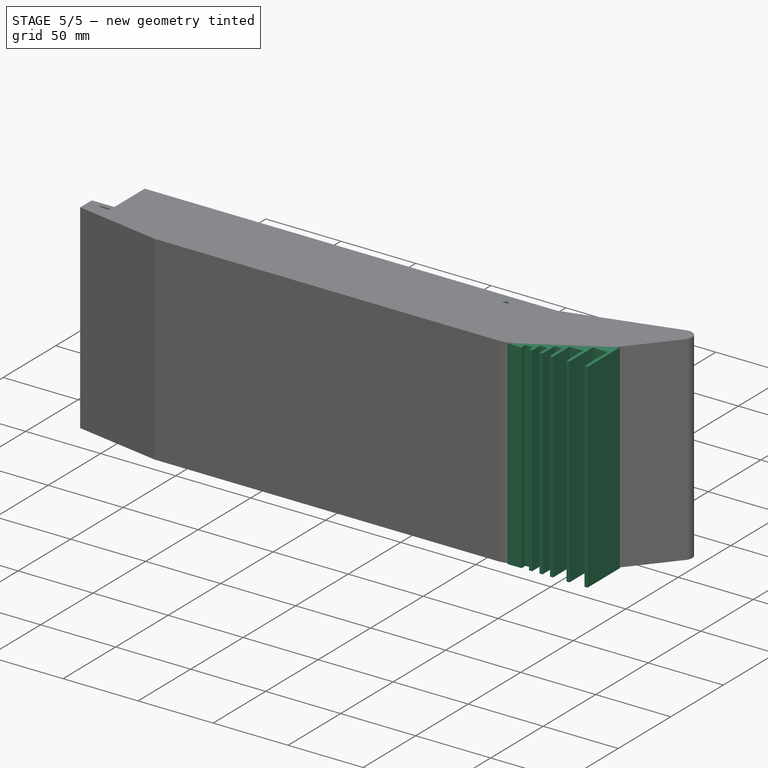
[diagram: stage 5 of 5 — iso view after this stage's code; geometry added in this stage tinted green]
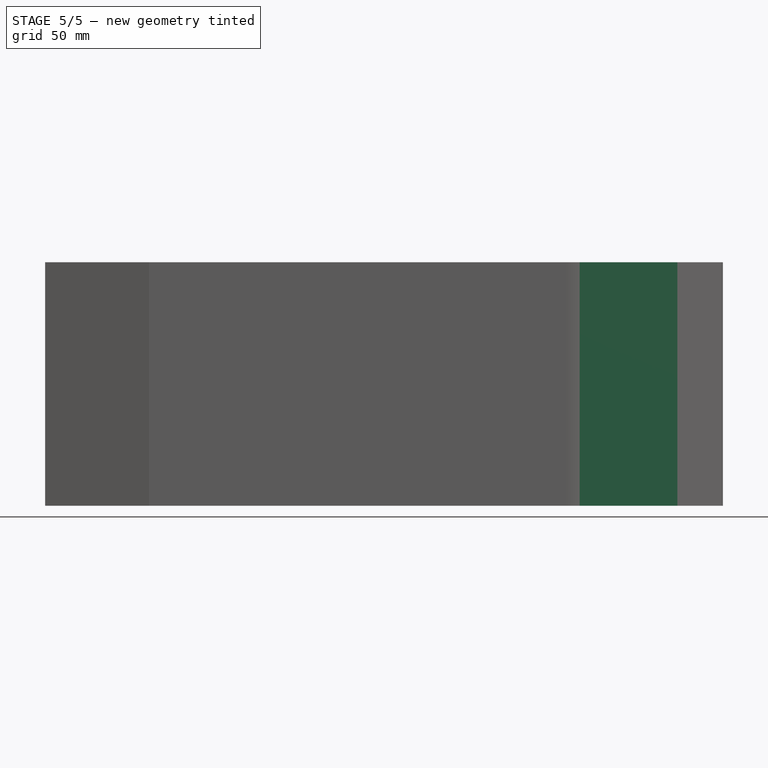
[diagram: stage 5 of 5 — front view after this stage's code; geometry added in this stage tinted green]
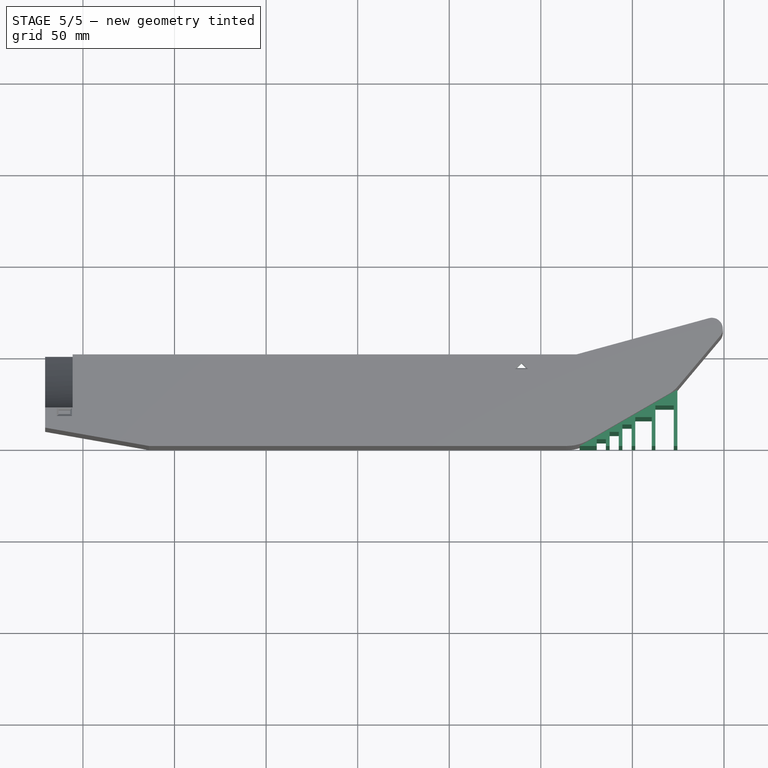
[diagram: stage 5 of 5 — top view after this stage's code; geometry added in this stage tinted green]
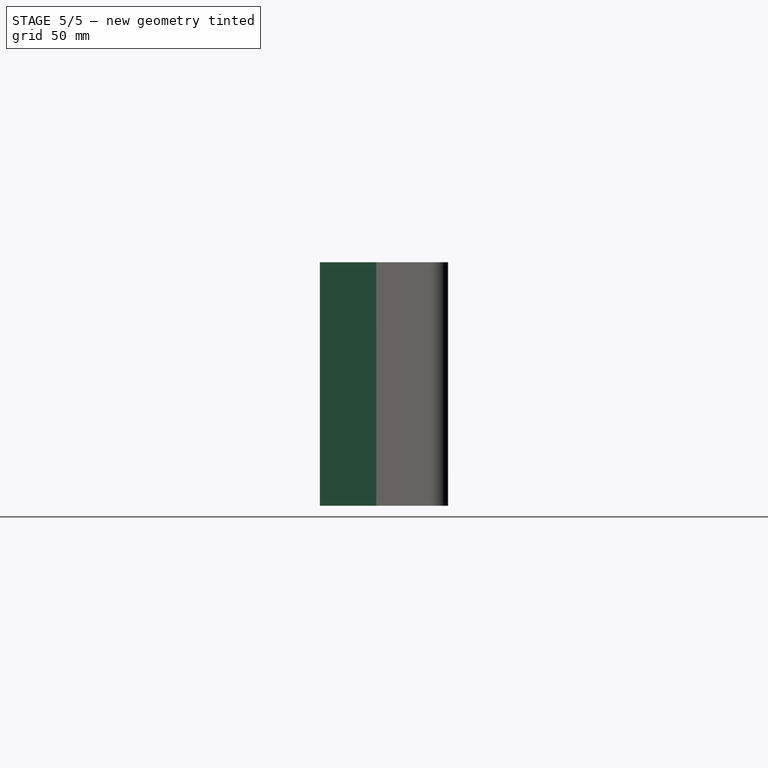
[diagram: stage 5 of 5 — right view after this stage's code; geometry added in this stage tinted green]
FEATURE [Sketcher::SketchObject] Sketch010
  ExternalGeometry = -> [Chamfer003]
  Placement = pos=(0,0,133) rot=(0,0,1;0rad)
  Support = -> Chamfer003 [Face117]
  sketch-geometry (28):
    g0: LineSegment StartX=121.213 StartY=0 StartZ=0 EndX=174.544 EndY=30.7906 EndZ=0
    g1: LineSegment StartX=174.544 StartY=30.7906 StartZ=0 EndX=174.544 EndY=0 EndZ=0
    g2: LineSegment StartX=174.544 StartY=0 StartZ=0 EndX=172.544 EndY=0 EndZ=0
    g3: LineSegment StartX=172.544 StartY=0 StartZ=0 EndX=172.544 EndY=22.1303 EndZ=0
    g4: LineSegment StartX=172.544 StartY=22.1303 StartZ=0 EndX=162.544 EndY=22.1303 EndZ=0
    g5: LineSegment StartX=162.544 StartY=22.1303 StartZ=0 EndX=162.544 EndY=0 EndZ=0
    g6: LineSegment StartX=162.544 StartY=0 StartZ=0 EndX=160.544 EndY=0 EndZ=0
    g7: LineSegment StartX=160.544 StartY=0 StartZ=0 EndX=160.544 EndY=15.7795 EndZ=0
    g8: LineSegment StartX=160.544 StartY=15.7795 StartZ=0 EndX=151.544 EndY=15.7795 EndZ=0
    g9: LineSegment StartX=151.544 StartY=15.7795 StartZ=0 EndX=151.544 EndY=0 EndZ=0
    g10: LineSegment StartX=151.544 StartY=0 StartZ=0 EndX=149.544 EndY=0 EndZ=0
    g11: LineSegment StartX=149.544 StartY=0 StartZ=0 EndX=149.544 EndY=11.738 EndZ=0
    g12: LineSegment StartX=149.544 StartY=11.738 StartZ=0 EndX=144.544 EndY=11.738 EndZ=0
    g13: LineSegment StartX=144.544 StartY=11.738 StartZ=0 EndX=144.544 EndY=0 EndZ=0
    g14: LineSegment StartX=144.544 StartY=0 StartZ=0 EndX=142.544 EndY=0 EndZ=0
    g15: LineSegment StartX=142.544 StartY=0 StartZ=0 EndX=142.544 EndY=7.69655 EndZ=0
    g16: LineSegment StartX=142.544 StartY=7.69655 StartZ=0 EndX=137.544 EndY=7.69655 EndZ=0
    g17: LineSegment StartX=137.544 StartY=7.69655 StartZ=0 EndX=137.544 EndY=0 EndZ=0
    g18: LineSegment StartX=137.544 StartY=0 StartZ=0 EndX=135.544 EndY=0 EndZ=0
    g19: LineSegment StartX=135.544 StartY=0 StartZ=0 EndX=135.544 EndY=3.6551 EndZ=0
    g20: LineSegment StartX=135.544 StartY=3.6551 StartZ=0 EndX=130.544 EndY=3.6551 EndZ=0
    g21: LineSegment StartX=130.544 StartY=3.6551 StartZ=0 EndX=130.544 EndY=0 EndZ=0
    g22: LineSegment StartX=130.544 StartY=0 StartZ=0 EndX=121.213 EndY=0 EndZ=0
    g23: LineSegment [constr] StartX=167.957 StartY=27.334 StartZ=0 EndX=168.107 EndY=27.0742 EndZ=0
    g24: LineSegment [constr] StartX=121.213 StartY=0 StartZ=0 EndX=174.544 EndY=0 EndZ=0
    g25: LineSegment [constr] StartX=-18.2339 StartY=-46.4789 StartZ=0 EndX=-18.3876 EndY=-46.0031 EndZ=0
    g26: LineSegment [constr] StartX=162.544 StartY=22.1303 StartZ=0 EndX=130.544 EndY=3.6551 EndZ=0
    g27: LineSegment [constr] StartX=156.602 StartY=18.6995 StartZ=0 EndX=155.852 EndY=19.9985 EndZ=0
  constraints (79):
    c: PointOnObject(g0,g-1)
    c: Vertical(g1)
    c: Coincident(g1,g2)
    c: Horizontal(g2)
    c: Coincident(g2,g3)
    c: Vertical(g3)
    c: Coincident(g3,g4)
    c: Horizontal(g4)
    c: Coincident(g4,g5)
    c: Vertical(g5)
    c: Coincident(g5,g6)
    c: Coincident(g6,g7)
    c: Vertical(g7)
    c: Coincident(g7,g8)
    c: Coincident(g8,g9)
    c: Vertical(g9)
    c: Coincident(g9,g10)
    c: PointOnObject(g10,g-1)
    c: Coincident(g10,g11)
    c: Vertical(g11)
    c: Coincident(g11,g12)
    c: Horizontal(g12)
    c: Coincident(g12,g13)
    c: PointOnObject(g13,g-1)
    c: Vertical(g13)
    c: Coincident(g13,g14)
    c: PointOnObject(g14,g-1)
    c: Coincident(g14,g15)
    c: Vertical(g15)
    c: Coincident(g15,g16)
    c: Horizontal(g16)
    c: Coincident(g16,g17)
    c: PointOnObject(g17,g-1)
    c: Vertical(g17)
    c: Coincident(g17,g18)
    c: PointOnObject(g18,g-1)
    c: Coincident(g18,g19)
    c: Vertical(g19)
    c: Coincident(g19,g20)
    c: Horizontal(g20)
    c: Coincident(g20,g21)
    c: Vertical(g21)
    c: Coincident(g21,g22)
    c: Coincident(g22,g0)
    c: Horizontal(g22)
    c: Horizontal(g8)
    c: Horizontal(g10)
    c: Horizontal(g6)
    c: Equal(g10,g14)
    c: Equal(g14,g18)
    c: Equal(g18,g2)
    c: Distance(g23) = 0.3
    c: Distance(g2) = 2
    c: Coincident(g24,g0)
    c: Coincident(g24,g1)
    c: PointOnObject(g5,g24)
    c: PointOnObject(g10,g24)
    c: Distance(g4) = 10
    c: Distance(g8) = 9
    c: Distance(g12) = 5
    c: Distance(g16) = 5
    c: Distance(g20) = 5
    c: Distance(g25) = 0.5
    c: Parallel(g-5,g0)
    c: Equal(g6,g10)
    c: Perpendicular(g0,g23)
    c: PointOnObject(g23,g0)
    c: PointOnObject(g23,g-5)
    c: Coincident(g1,g0)
    c: Coincident(g26,g4)
    c: Coincident(g26,g20)
    c: PointOnObject(g8,g26)
    c: PointOnObject(g12,g26)
    c: PointOnObject(g16,g26)
    c: Parallel(g26,g0)
    c: PointOnObject(g27,g26)
    c: PointOnObject(g27,g0)
    c: Perpendicular(g0,g27)
    c: Distance(g27) = 1.5
FEATURE [PartDesign::Pad] Pad004
  Length = 10
  Length2 = 100
  Sketch = -> Sketch010
  Type = 3
  UpToFace = -> Chamfer003 [Face4]
FEATURE [Sketcher::SketchObject] Sketch011
  ExternalGeometry = -> [Chamfer003]
  Placement = pos=(0,0,133) rot=(0,0,1;0rad)
  Support = -> Chamfer003 [Face117]
  sketch-geometry (3):
    g0: LineSegment StartX=86.9469 StartY=42.5 StartZ=0 EndX=91.9469 EndY=42.5 EndZ=0
    g1: LineSegment StartX=91.9469 StartY=42.5 StartZ=0 EndX=89.4469 EndY=45 EndZ=0
    g2: LineSegment StartX=89.4469 StartY=45 StartZ=0 EndX=86.9469 EndY=42.5 EndZ=0
  constraints (9):
    c: Horizontal(g0)
    c: Coincident(g1,g0)
    c: Coincident(g2,g1)
    c: Coincident(g2,g0)
    c: Angle(g1) = 2.35619
    c: Equal(g1,g2)
    c: DistanceX(g1,g-4) = 30
    c: DistanceY(g1,g-4) = 5
    c: Distance(g0) = 5
FEATURE [PartDesign::Pocket] Pocket006
  Length = 0
  Sketch = -> Sketch011
  Type = 3
  UpToFace = -> Chamfer003 [Face69]
FEATURE [PartDesign::Chamfer] Chamfer004
  Base = -> Pocket006 [Edge328,Edge327,Edge326]
  Size = 0.5
FEATURE [Sketcher::SketchObject] Sketch012
  ExternalGeometry = -> [Pocket006]
  Placement = pos=(0,0,0) rot=(1,0,0;1.5708rad)
  Support = -> Chamfer004 [Face27]
  sketch-geometry (4):
    g0: LineSegment StartX=13.6706 StartY=0 StartZ=0 EndX=-232.081 EndY=0 EndZ=0
    g1: LineSegment StartX=-232.081 StartY=0 StartZ=0 EndX=-232.081 EndY=255.514 EndZ=0
    g2: LineSegment StartX=-232.081 StartY=255.514 StartZ=0 EndX=13.6706 EndY=255.514 EndZ=0
    g3: LineSegment StartX=13.6706 StartY=255.514 StartZ=0 EndX=13.6706 EndY=0 EndZ=0
  constraints (10):
    c: Coincident(g0,g1)
    c: Coincident(g1,g2)
    c: Coincident(g2,g3)
    c: Coincident(g3,g0)
    c: Horizontal(g0)
    c: Horizontal(g2)
    c: Vertical(g1)
    c: Vertical(g3)
    c: PointOnObject(g0,g-1)
    c: Symmetric(g-3,g-4,g3)
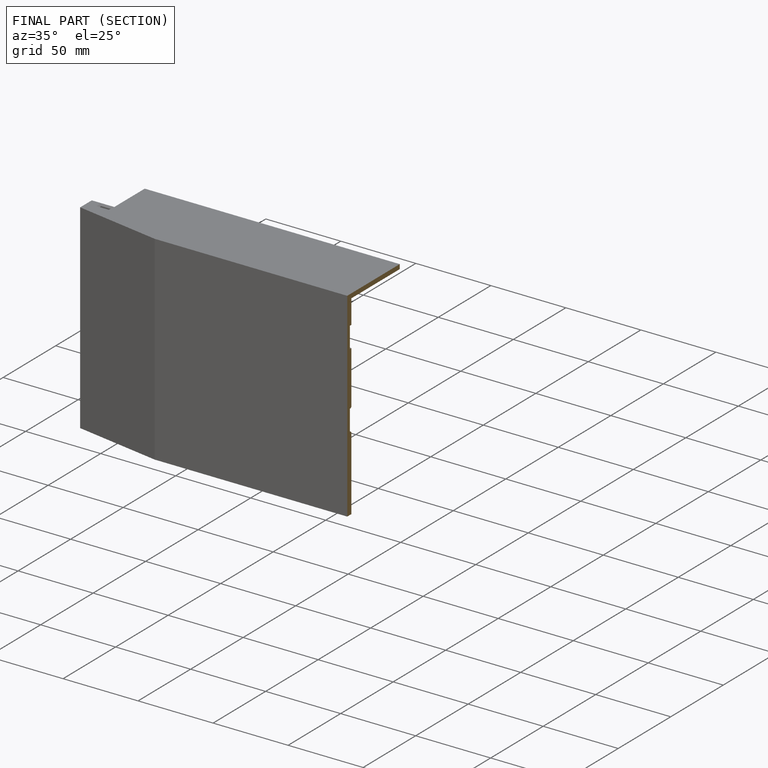
[diagram: finished part — half-section view (interior)]
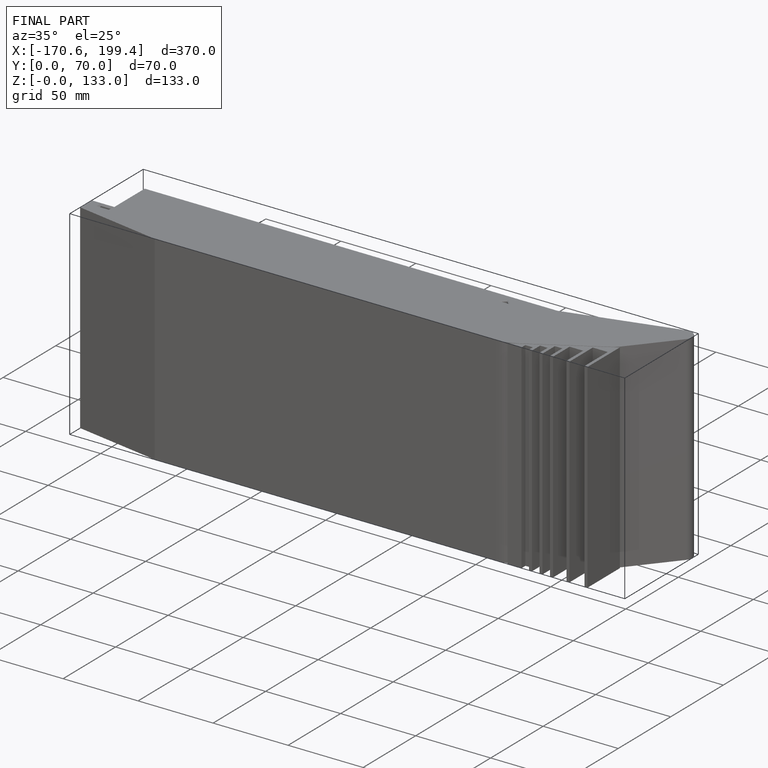
[diagram: finished part — iso view with bounding-box wireframe]
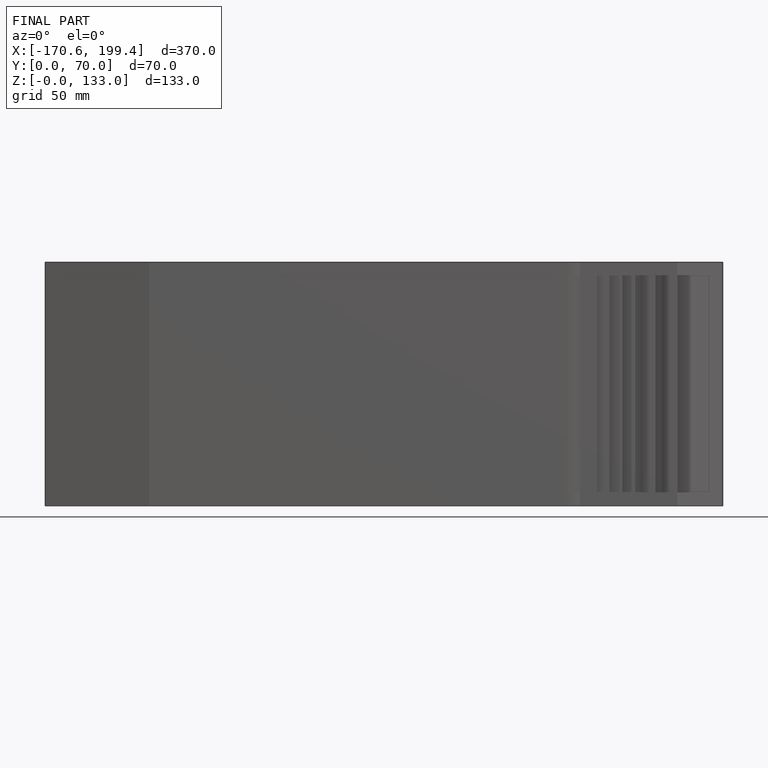
[diagram: finished part — front view with bounding-box wireframe]
